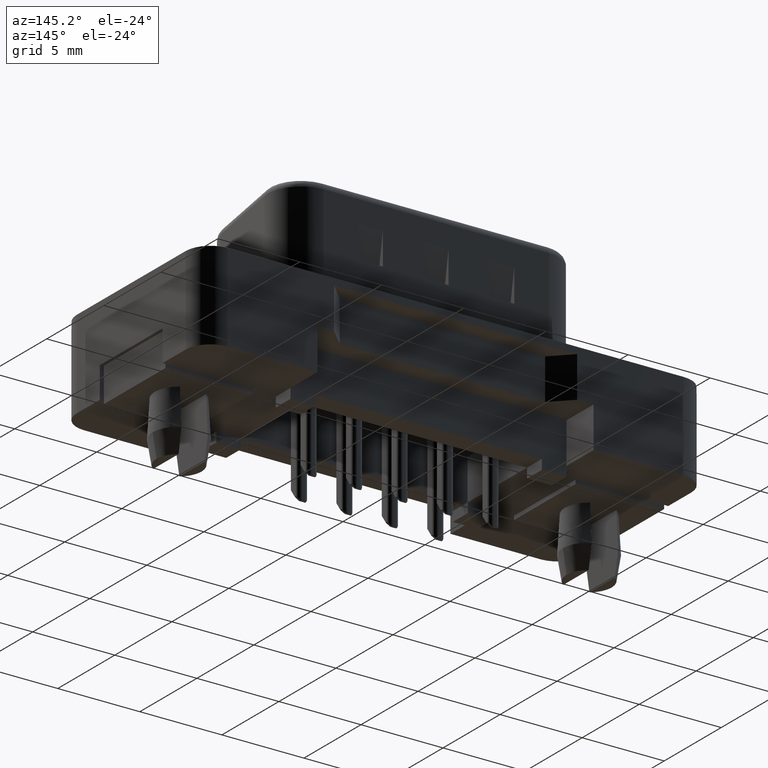
[diagram: clean part render]
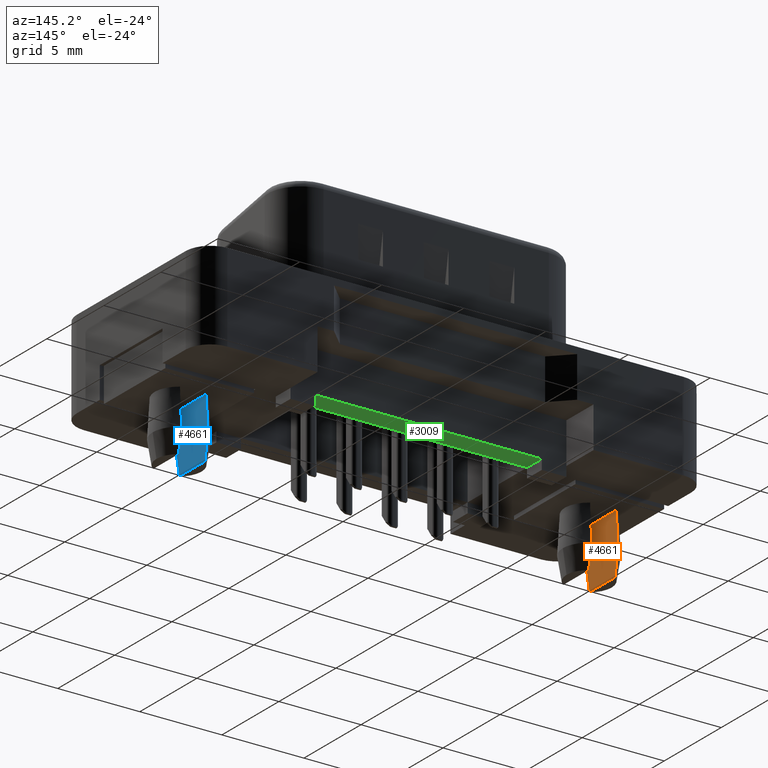
[diagram: same view with three faces highlighted in distinct colors, each labeled with its STEP entity id]
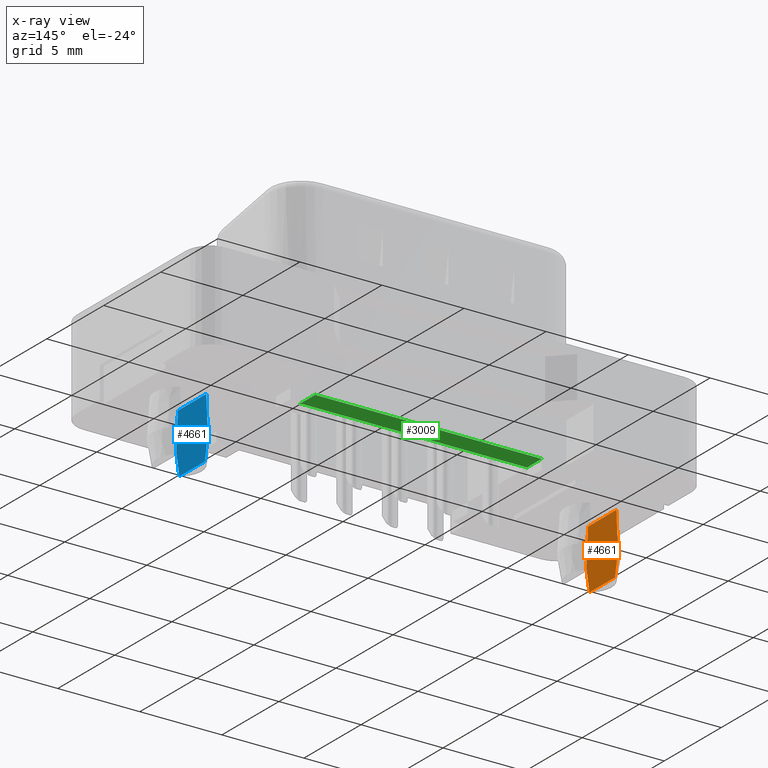
[diagram: x-ray of the same camera — body ghosted, the three highlighted faces saturated]
A machine part, auxiliary view with three faces highlighted in distinct colors.
The next image is the same camera in x-ray (body ghosted, the three faces saturated) — at least one of them is partly hidden behind the body in this view.
Their STEP definitions:

[orange] entity #4661 — the highlighted planar face has unit normal (-1, 0, 0).
#448 = DIRECTION ( 'NONE',  ( 0.0000000000000000000, 1.000000000000000000, 0.0000000000000000000 ) ) ;
#558 = CARTESIAN_POINT ( 'NONE',  ( -0.8000000000000001554, 1.373400028926603289, -7.259187662956978926 ) ) ;
#774 = CARTESIAN_POINT ( 'NONE',  ( -0.8000000000000001554, 1.239203373139373010, -5.200000000000000178 ) ) ;
#1292 = CARTESIAN_POINT ( 'NONE',  ( -0.8000000000000001554, 1.298953758450855700, -7.917121180341010422 ) ) ;
#1709 = ORIENTED_EDGE ( 'NONE', *, *, #2539, .T. ) ;
#1894 = FACE_OUTER_BOUND ( 'NONE', #11227, .T. ) ;
#2052 = CARTESIAN_POINT ( 'NONE',  ( -0.8000000000000001554, 1.385640646055101843, -7.450000000000000178 ) ) ;
#2381 = CARTESIAN_POINT ( 'NONE',  ( -0.8000000000000001554, -1.385640646055101843, -7.450000000000000178 ) ) ;
#2431 = CARTESIAN_POINT ( 'NONE',  ( -0.8000000000000001554, 1.118313462317251261, -8.849999999999999645 ) ) ;
#2539 = EDGE_CURVE ( 'NONE', #7255, #13546, #13091, .T. ) ;
#2640 = LINE ( 'NONE', #13145, #3169 ) ;
#2976 = CARTESIAN_POINT ( 'NONE',  ( -0.8000000000000001554, 1.385640646055101843, -7.450000000000000178 ) ) ;
#3169 = VECTOR ( 'NONE', #448, 1000.000000000000000 ) ;
#3285 = CARTESIAN_POINT ( 'NONE',  ( -0.8000000000000001554, -1.385640646055101843, -7.450000000000000178 ) ) ;
#3590 = EDGE_CURVE ( 'NONE', #8636, #13301, #2640, .T. ) ;
#3757 = ORIENTED_EDGE ( 'NONE', *, *, #3590, .F. ) ;
#3910 = B_SPLINE_CURVE_WITH_KNOTS ( 'NONE', 3,
 ( #9079, #6811, #13714, #3285 ),
 .UNSPECIFIED., .F., .F.,
 ( 4, 4 ),
 ( 0.002112574224130369521, 0.003537671103084968124 ),
 .UNSPECIFIED. ) ;
#3987 = B_SPLINE_CURVE_WITH_KNOTS ( 'NONE', 3,
 ( #11032, #10967, #6184, #4132, #7389, #12020, #9751, #8692, #558, #2976 ),
 .UNSPECIFIED., .F., .F.,
 ( 4, 3, 3, 4 ),
 ( 0.001290420621860329312, 0.002659423906506794711, 0.002971566944148802680, 0.003545180249242466716 ),
 .UNSPECIFIED. ) ;
#4106 = EDGE_CURVE ( 'NONE', #13301, #4170, #3987, .T. ) ;
#4132 = CARTESIAN_POINT ( 'NONE',  ( -0.8000000000000001554, 1.328634646746071679, -6.566079379970895857 ) ) ;
#4170 = VERTEX_POINT ( 'NONE', #2052 ) ;
#4259 = ORIENTED_EDGE ( 'NONE', *, *, #11623, .F. ) ;
#4416 = EDGE_CURVE ( 'NONE', #4170, #13546, #6346, .T. ) ;
#4661 = ADVANCED_FACE ( 'NONE', ( #1894 ), #6546, .F. ) ;
#5468 = CARTESIAN_POINT ( 'NONE',  ( -0.8000000000000001554, -1.599999999999999867, -1.622291236000335202 ) ) ;
#5736 = CARTESIAN_POINT ( 'NONE',  ( -0.8000000000000001554, -1.373400028926602845, -7.259187662956978926 ) ) ;
#5801 = ORIENTED_EDGE ( 'NONE', *, *, #4106, .F. ) ;
#5892 = CARTESIAN_POINT ( 'NONE',  ( -0.8000000000000001554, -1.361119059920799845, -7.068377909462543407 ) ) ;
#6096 = CARTESIAN_POINT ( 'NONE',  ( -0.8000000000000001554, 1.385640646055101843, -7.450000000000000178 ) ) ;
#6106 = VERTEX_POINT ( 'NONE', #13066 ) ;
#6184 = CARTESIAN_POINT ( 'NONE',  ( -0.8000000000000001554, 1.299103800268465614, -6.110701370079061334 ) ) ;
#6346 = B_SPLINE_CURVE_WITH_KNOTS ( 'NONE', 3,
 ( #6096, #1292, #10729, #2431 ),
 .UNSPECIFIED., .F., .F.,
 ( 4, 4 ),
 ( 0.001405106608629955395, 0.002830396393596369686 ),
 .UNSPECIFIED. ) ;
#6546 = PLANE ( 'NONE',  #8143 ) ;
#6683 = DIRECTION ( 'NONE',  ( -1.000000000000000000, 0.0000000000000000000, 0.0000000000000000000 ) ) ;
#6749 = ORIENTED_EDGE ( 'NONE', *, *, #4416, .F. ) ;
#6811 = CARTESIAN_POINT ( 'NONE',  ( -0.8000000000000001554, -1.210415086248477934, -8.383905841386670943 ) ) ;
#7255 = VERTEX_POINT ( 'NONE', #11469 ) ;
#7389 = CARTESIAN_POINT ( 'NONE',  ( -0.8000000000000001554, 1.335367905649196496, -6.669909049794844336 ) ) ;
#7855 = B_SPLINE_CURVE_WITH_KNOTS ( 'NONE', 3,
 ( #2381, #5736, #5892, #14934, #10369, #9085, #10231 ),
 .UNSPECIFIED., .F., .F.,
 ( 4, 3, 4 ),
 ( 0.002397952209147179246, 0.002971565672696851578, 0.004652712825744561090 ),
 .UNSPECIFIED. ) ;
#8143 = AXIS2_PLACEMENT_3D ( 'NONE', #5468, #6683, #8974 ) ;
#8440 = CARTESIAN_POINT ( 'NONE',  ( -0.8000000000000001554, 1.118313462317251261, -8.849999999999999645 ) ) ;
#8636 = VERTEX_POINT ( 'NONE', #10209 ) ;
#8692 = CARTESIAN_POINT ( 'NONE',  ( -0.8000000000000001554, 1.361119059920752106, -7.068377909462546071 ) ) ;
#8974 = DIRECTION ( 'NONE',  ( 0.0000000000000000000, 0.0000000000000000000, 1.000000000000000000 ) ) ;
#9079 = CARTESIAN_POINT ( 'NONE',  ( -0.8000000000000001554, -1.118313462317252149, -8.849999999999999645 ) ) ;
#9085 = CARTESIAN_POINT ( 'NONE',  ( -0.8000000000000001554, -1.276178856102542891, -5.759161069698628843 ) ) ;
#9751 = CARTESIAN_POINT ( 'NONE',  ( -0.8000000000000001554, 1.348794344761408803, -6.877570985920063329 ) ) ;
#10209 = CARTESIAN_POINT ( 'NONE',  ( -0.8000000000000001554, -1.239203373139373010, -5.200000000000000178 ) ) ;
#10231 = CARTESIAN_POINT ( 'NONE',  ( -0.8000000000000001554, -1.239203373139373010, -5.200000000000000178 ) ) ;
#10369 = CARTESIAN_POINT ( 'NONE',  ( -0.8000000000000001554, -1.312673071574539829, -6.318354085397345443 ) ) ;
#10729 = CARTESIAN_POINT ( 'NONE',  ( -0.8000000000000001554, 1.210410314785505870, -8.383929988094671160 ) ) ;
#10967 = CARTESIAN_POINT ( 'NONE',  ( -0.8000000000000001554, 1.269313514969198753, -5.655340073072554041 ) ) ;
#11032 = CARTESIAN_POINT ( 'NONE',  ( -0.8000000000000001554, 1.239203373139373010, -5.200000000000000178 ) ) ;
#11227 = EDGE_LOOP ( 'NONE', ( #1709, #6749, #5801, #3757, #14425, #4259 ) ) ;
#11469 = CARTESIAN_POINT ( 'NONE',  ( -0.8000000000000001554, -1.118313462317252149, -8.849999999999999645 ) ) ;
#11623 = EDGE_CURVE ( 'NONE', #7255, #6106, #3910, .T. ) ;
#12020 = CARTESIAN_POINT ( 'NONE',  ( -0.8000000000000001554, 1.342087605635632119, -6.773739599713841208 ) ) ;
#12077 = VECTOR ( 'NONE', #12773, 1000.000000000000000 ) ;
#12773 = DIRECTION ( 'NONE',  ( 0.0000000000000000000, 1.000000000000000000, 0.0000000000000000000 ) ) ;
#12863 = CARTESIAN_POINT ( 'NONE',  ( -0.8000000000000001554, -1.599999999999999867, -8.849999999999999645 ) ) ;
#13066 = CARTESIAN_POINT ( 'NONE',  ( -0.8000000000000001554, -1.385640646055101843, -7.450000000000000178 ) ) ;
#13091 = LINE ( 'NONE', #12863, #12077 ) ;
#13145 = CARTESIAN_POINT ( 'NONE',  ( -0.8000000000000001554, -1.599999999999999867, -5.200000000000000178 ) ) ;
#13301 = VERTEX_POINT ( 'NONE', #774 ) ;
#13546 = VERTEX_POINT ( 'NONE', #8440 ) ;
#13714 = CARTESIAN_POINT ( 'NONE',  ( -0.8000000000000001554, -1.298954384044839205, -7.917117809263700678 ) ) ;
#14332 = EDGE_CURVE ( 'NONE', #6106, #8636, #7855, .T. ) ;
#14425 = ORIENTED_EDGE ( 'NONE', *, *, #14332, .F. ) ;
#14934 = CARTESIAN_POINT ( 'NONE',  ( -0.8000000000000001554, -1.348794344761456765, -6.877570985920060664 ) ) ;

[blue] entity #4661 — the highlighted planar face has unit normal (-1, 0, 0).
#448 = DIRECTION ( 'NONE',  ( 0.0000000000000000000, 1.000000000000000000, 0.0000000000000000000 ) ) ;
#558 = CARTESIAN_POINT ( 'NONE',  ( -0.8000000000000001554, 1.373400028926603289, -7.259187662956978926 ) ) ;
#774 = CARTESIAN_POINT ( 'NONE',  ( -0.8000000000000001554, 1.239203373139373010, -5.200000000000000178 ) ) ;
#1292 = CARTESIAN_POINT ( 'NONE',  ( -0.8000000000000001554, 1.298953758450855700, -7.917121180341010422 ) ) ;
#1709 = ORIENTED_EDGE ( 'NONE', *, *, #2539, .T. ) ;
#1894 = FACE_OUTER_BOUND ( 'NONE', #11227, .T. ) ;
#2052 = CARTESIAN_POINT ( 'NONE',  ( -0.8000000000000001554, 1.385640646055101843, -7.450000000000000178 ) ) ;
#2381 = CARTESIAN_POINT ( 'NONE',  ( -0.8000000000000001554, -1.385640646055101843, -7.450000000000000178 ) ) ;
#2431 = CARTESIAN_POINT ( 'NONE',  ( -0.8000000000000001554, 1.118313462317251261, -8.849999999999999645 ) ) ;
#2539 = EDGE_CURVE ( 'NONE', #7255, #13546, #13091, .T. ) ;
#2640 = LINE ( 'NONE', #13145, #3169 ) ;
#2976 = CARTESIAN_POINT ( 'NONE',  ( -0.8000000000000001554, 1.385640646055101843, -7.450000000000000178 ) ) ;
#3169 = VECTOR ( 'NONE', #448, 1000.000000000000000 ) ;
#3285 = CARTESIAN_POINT ( 'NONE',  ( -0.8000000000000001554, -1.385640646055101843, -7.450000000000000178 ) ) ;
#3590 = EDGE_CURVE ( 'NONE', #8636, #13301, #2640, .T. ) ;
#3757 = ORIENTED_EDGE ( 'NONE', *, *, #3590, .F. ) ;
#3910 = B_SPLINE_CURVE_WITH_KNOTS ( 'NONE', 3,
 ( #9079, #6811, #13714, #3285 ),
 .UNSPECIFIED., .F., .F.,
 ( 4, 4 ),
 ( 0.002112574224130369521, 0.003537671103084968124 ),
 .UNSPECIFIED. ) ;
#3987 = B_SPLINE_CURVE_WITH_KNOTS ( 'NONE', 3,
 ( #11032, #10967, #6184, #4132, #7389, #12020, #9751, #8692, #558, #2976 ),
 .UNSPECIFIED., .F., .F.,
 ( 4, 3, 3, 4 ),
 ( 0.001290420621860329312, 0.002659423906506794711, 0.002971566944148802680, 0.003545180249242466716 ),
 .UNSPECIFIED. ) ;
#4106 = EDGE_CURVE ( 'NONE', #13301, #4170, #3987, .T. ) ;
#4132 = CARTESIAN_POINT ( 'NONE',  ( -0.8000000000000001554, 1.328634646746071679, -6.566079379970895857 ) ) ;
#4170 = VERTEX_POINT ( 'NONE', #2052 ) ;
#4259 = ORIENTED_EDGE ( 'NONE', *, *, #11623, .F. ) ;
#4416 = EDGE_CURVE ( 'NONE', #4170, #13546, #6346, .T. ) ;
#4661 = ADVANCED_FACE ( 'NONE', ( #1894 ), #6546, .F. ) ;
#5468 = CARTESIAN_POINT ( 'NONE',  ( -0.8000000000000001554, -1.599999999999999867, -1.622291236000335202 ) ) ;
#5736 = CARTESIAN_POINT ( 'NONE',  ( -0.8000000000000001554, -1.373400028926602845, -7.259187662956978926 ) ) ;
#5801 = ORIENTED_EDGE ( 'NONE', *, *, #4106, .F. ) ;
#5892 = CARTESIAN_POINT ( 'NONE',  ( -0.8000000000000001554, -1.361119059920799845, -7.068377909462543407 ) ) ;
#6096 = CARTESIAN_POINT ( 'NONE',  ( -0.8000000000000001554, 1.385640646055101843, -7.450000000000000178 ) ) ;
#6106 = VERTEX_POINT ( 'NONE', #13066 ) ;
#6184 = CARTESIAN_POINT ( 'NONE',  ( -0.8000000000000001554, 1.299103800268465614, -6.110701370079061334 ) ) ;
#6346 = B_SPLINE_CURVE_WITH_KNOTS ( 'NONE', 3,
 ( #6096, #1292, #10729, #2431 ),
 .UNSPECIFIED., .F., .F.,
 ( 4, 4 ),
 ( 0.001405106608629955395, 0.002830396393596369686 ),
 .UNSPECIFIED. ) ;
#6546 = PLANE ( 'NONE',  #8143 ) ;
#6683 = DIRECTION ( 'NONE',  ( -1.000000000000000000, 0.0000000000000000000, 0.0000000000000000000 ) ) ;
#6749 = ORIENTED_EDGE ( 'NONE', *, *, #4416, .F. ) ;
#6811 = CARTESIAN_POINT ( 'NONE',  ( -0.8000000000000001554, -1.210415086248477934, -8.383905841386670943 ) ) ;
#7255 = VERTEX_POINT ( 'NONE', #11469 ) ;
#7389 = CARTESIAN_POINT ( 'NONE',  ( -0.8000000000000001554, 1.335367905649196496, -6.669909049794844336 ) ) ;
#7855 = B_SPLINE_CURVE_WITH_KNOTS ( 'NONE', 3,
 ( #2381, #5736, #5892, #14934, #10369, #9085, #10231 ),
 .UNSPECIFIED., .F., .F.,
 ( 4, 3, 4 ),
 ( 0.002397952209147179246, 0.002971565672696851578, 0.004652712825744561090 ),
 .UNSPECIFIED. ) ;
#8143 = AXIS2_PLACEMENT_3D ( 'NONE', #5468, #6683, #8974 ) ;
#8440 = CARTESIAN_POINT ( 'NONE',  ( -0.8000000000000001554, 1.118313462317251261, -8.849999999999999645 ) ) ;
#8636 = VERTEX_POINT ( 'NONE', #10209 ) ;
#8692 = CARTESIAN_POINT ( 'NONE',  ( -0.8000000000000001554, 1.361119059920752106, -7.068377909462546071 ) ) ;
#8974 = DIRECTION ( 'NONE',  ( 0.0000000000000000000, 0.0000000000000000000, 1.000000000000000000 ) ) ;
#9079 = CARTESIAN_POINT ( 'NONE',  ( -0.8000000000000001554, -1.118313462317252149, -8.849999999999999645 ) ) ;
#9085 = CARTESIAN_POINT ( 'NONE',  ( -0.8000000000000001554, -1.276178856102542891, -5.759161069698628843 ) ) ;
#9751 = CARTESIAN_POINT ( 'NONE',  ( -0.8000000000000001554, 1.348794344761408803, -6.877570985920063329 ) ) ;
#10209 = CARTESIAN_POINT ( 'NONE',  ( -0.8000000000000001554, -1.239203373139373010, -5.200000000000000178 ) ) ;
#10231 = CARTESIAN_POINT ( 'NONE',  ( -0.8000000000000001554, -1.239203373139373010, -5.200000000000000178 ) ) ;
#10369 = CARTESIAN_POINT ( 'NONE',  ( -0.8000000000000001554, -1.312673071574539829, -6.318354085397345443 ) ) ;
#10729 = CARTESIAN_POINT ( 'NONE',  ( -0.8000000000000001554, 1.210410314785505870, -8.383929988094671160 ) ) ;
#10967 = CARTESIAN_POINT ( 'NONE',  ( -0.8000000000000001554, 1.269313514969198753, -5.655340073072554041 ) ) ;
#11032 = CARTESIAN_POINT ( 'NONE',  ( -0.8000000000000001554, 1.239203373139373010, -5.200000000000000178 ) ) ;
#11227 = EDGE_LOOP ( 'NONE', ( #1709, #6749, #5801, #3757, #14425, #4259 ) ) ;
#11469 = CARTESIAN_POINT ( 'NONE',  ( -0.8000000000000001554, -1.118313462317252149, -8.849999999999999645 ) ) ;
#11623 = EDGE_CURVE ( 'NONE', #7255, #6106, #3910, .T. ) ;
#12020 = CARTESIAN_POINT ( 'NONE',  ( -0.8000000000000001554, 1.342087605635632119, -6.773739599713841208 ) ) ;
#12077 = VECTOR ( 'NONE', #12773, 1000.000000000000000 ) ;
#12773 = DIRECTION ( 'NONE',  ( 0.0000000000000000000, 1.000000000000000000, 0.0000000000000000000 ) ) ;
#12863 = CARTESIAN_POINT ( 'NONE',  ( -0.8000000000000001554, -1.599999999999999867, -8.849999999999999645 ) ) ;
#13066 = CARTESIAN_POINT ( 'NONE',  ( -0.8000000000000001554, -1.385640646055101843, -7.450000000000000178 ) ) ;
#13091 = LINE ( 'NONE', #12863, #12077 ) ;
#13145 = CARTESIAN_POINT ( 'NONE',  ( -0.8000000000000001554, -1.599999999999999867, -5.200000000000000178 ) ) ;
#13301 = VERTEX_POINT ( 'NONE', #774 ) ;
#13546 = VERTEX_POINT ( 'NONE', #8440 ) ;
#13714 = CARTESIAN_POINT ( 'NONE',  ( -0.8000000000000001554, -1.298954384044839205, -7.917117809263700678 ) ) ;
#14332 = EDGE_CURVE ( 'NONE', #6106, #8636, #7855, .T. ) ;
#14425 = ORIENTED_EDGE ( 'NONE', *, *, #14332, .F. ) ;
#14934 = CARTESIAN_POINT ( 'NONE',  ( -0.8000000000000001554, -1.348794344761456765, -6.877570985920060664 ) ) ;

[green] entity #3009 — the highlighted planar face has unit normal (0, 0, 1).
#76 = DIRECTION ( 'NONE',  ( 1.000000000000000000, 0.0000000000000000000, -0.0000000000000000000 ) ) ;
#225 = CARTESIAN_POINT ( 'NONE',  ( 20.90000000000000568, 3.900000000000001243, -5.000000000000000000 ) ) ;
#348 = ORIENTED_EDGE ( 'NONE', *, *, #5877, .F. ) ;
#1058 = EDGE_LOOP ( 'NONE', ( #3851, #2803, #348, #13621 ) ) ;
#1222 = CARTESIAN_POINT ( 'NONE',  ( 26.40000000000000213, 4.775000000000002132, -5.000000000000000000 ) ) ;
#1294 = VERTEX_POINT ( 'NONE', #10413 ) ;
#1331 = LINE ( 'NONE', #5835, #6244 ) ;
#1731 = VECTOR ( 'NONE', #13466, 1000.000000000000000 ) ;
#1858 = VECTOR ( 'NONE', #10719, 1000.000000000000000 ) ;
#2576 = CARTESIAN_POINT ( 'NONE',  ( 5.589999999999995417, 3.900000000000004352, -5.000000000000000000 ) ) ;
#2803 = ORIENTED_EDGE ( 'NONE', *, *, #11513, .F. ) ;
#2945 = CARTESIAN_POINT ( 'NONE',  ( 19.40000000000000568, 3.900000000000001688, -5.000000000000000000 ) ) ;
#3009 = ADVANCED_FACE ( 'NONE', ( #7073 ), #10649, .F. ) ;
#3851 = ORIENTED_EDGE ( 'NONE', *, *, #6365, .F. ) ;
#4041 = EDGE_CURVE ( 'NONE', #1294, #10993, #13403, .T. ) ;
#4297 = VECTOR ( 'NONE', #13974, 1000.000000000000000 ) ;
#5771 = LINE ( 'NONE', #9498, #4297 ) ;
#5835 = CARTESIAN_POINT ( 'NONE',  ( 5.589999999999995417, 3.900000000000004352, -5.000000000000000000 ) ) ;
#5877 = EDGE_CURVE ( 'NONE', #10993, #6109, #5771, .T. ) ;
#5971 = DIRECTION ( 'NONE',  ( -6.672013369141550426E-16, -1.000000000000000000, 0.0000000000000000000 ) ) ;
#5992 = LINE ( 'NONE', #225, #1858 ) ;
#6109 = VERTEX_POINT ( 'NONE', #2945 ) ;
#6244 = VECTOR ( 'NONE', #5971, 1000.000000000000000 ) ;
#6365 = EDGE_CURVE ( 'NONE', #14462, #1294, #1331, .T. ) ;
#6715 = AXIS2_PLACEMENT_3D ( 'NONE', #1222, #12853, #76 ) ;
#7073 = FACE_OUTER_BOUND ( 'NONE', #1058, .T. ) ;
#8112 = CARTESIAN_POINT ( 'NONE',  ( 19.40000000000000568, 2.600000000000000977, -5.000000000000000000 ) ) ;
#9498 = CARTESIAN_POINT ( 'NONE',  ( 19.40000000000000568, 3.900000000000001243, -5.000000000000000000 ) ) ;
#9892 = CARTESIAN_POINT ( 'NONE',  ( 19.40000000000000568, 2.600000000000000977, -5.000000000000000000 ) ) ;
#10413 = CARTESIAN_POINT ( 'NONE',  ( 5.589999999999994529, 2.600000000000000977, -5.000000000000000000 ) ) ;
#10649 = PLANE ( 'NONE',  #6715 ) ;
#10719 = DIRECTION ( 'NONE',  ( -1.000000000000000000, 1.805928663271511079E-16, 0.0000000000000000000 ) ) ;
#10993 = VERTEX_POINT ( 'NONE', #8112 ) ;
#11513 = EDGE_CURVE ( 'NONE', #6109, #14462, #5992, .T. ) ;
#12853 = DIRECTION ( 'NONE',  ( 0.0000000000000000000, 0.0000000000000000000, 1.000000000000000000 ) ) ;
#13403 = LINE ( 'NONE', #9892, #1731 ) ;
#13466 = DIRECTION ( 'NONE',  ( 1.000000000000000000, -0.0000000000000000000, -0.0000000000000000000 ) ) ;
#13621 = ORIENTED_EDGE ( 'NONE', *, *, #4041, .F. ) ;
#13974 = DIRECTION ( 'NONE',  ( -0.0000000000000000000, 1.000000000000000000, -0.0000000000000000000 ) ) ;
#14462 = VERTEX_POINT ( 'NONE', #2576 ) ;